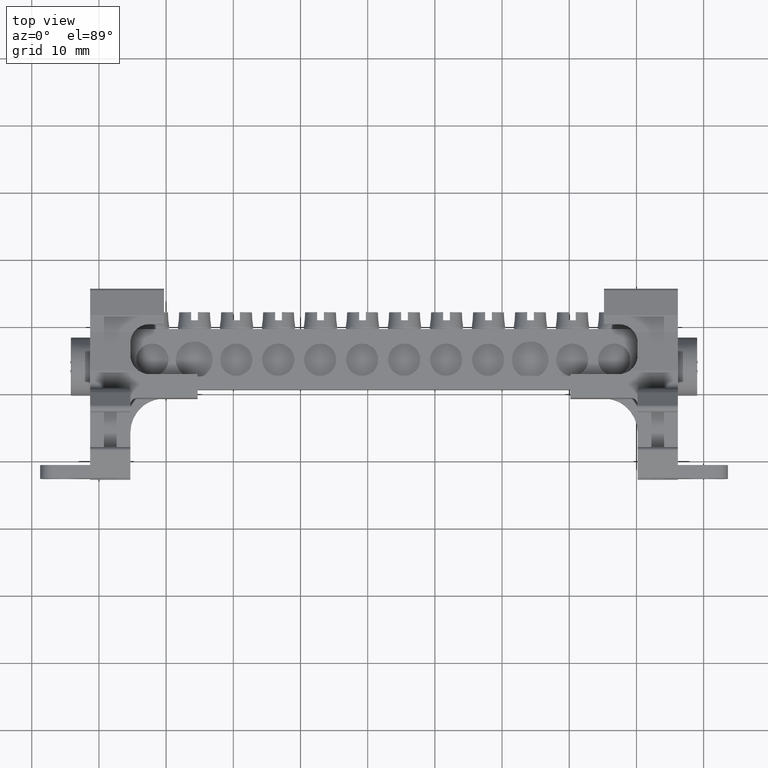
[diagram: clean part render]
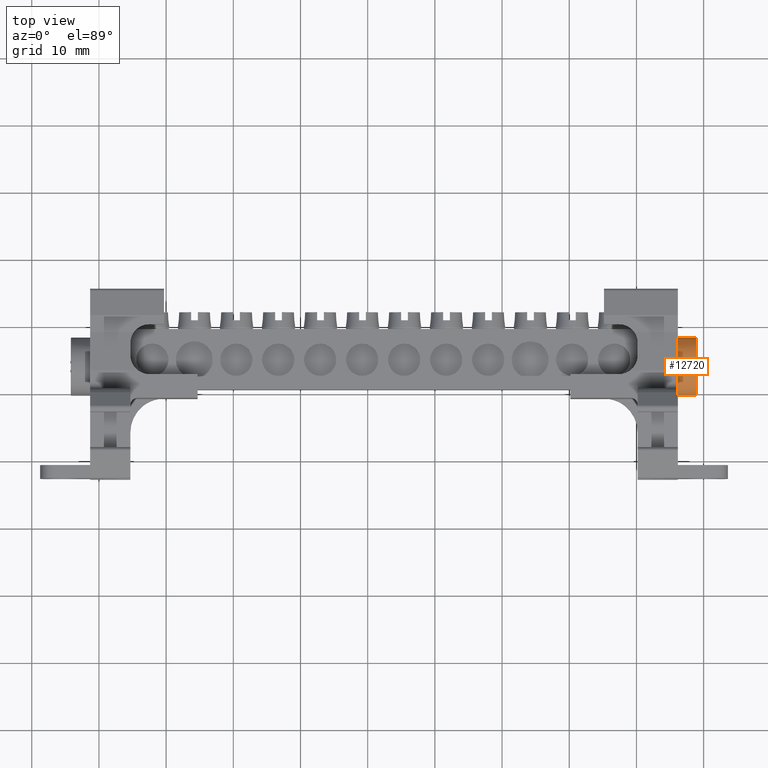
[diagram: same view with one face highlighted and labeled with its STEP entity id]
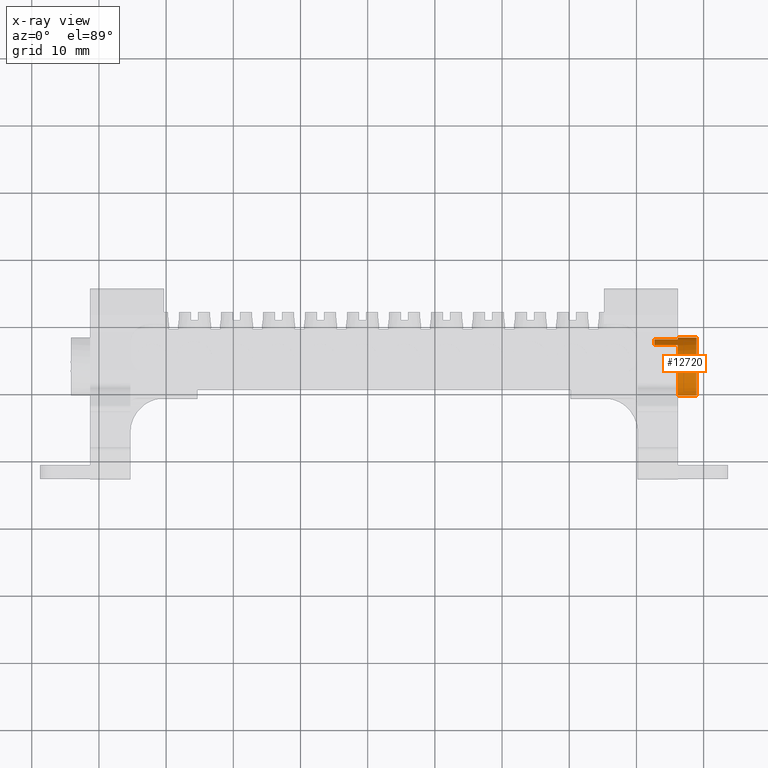
[diagram: x-ray of the same camera — body ghosted, the highlighted face saturated]
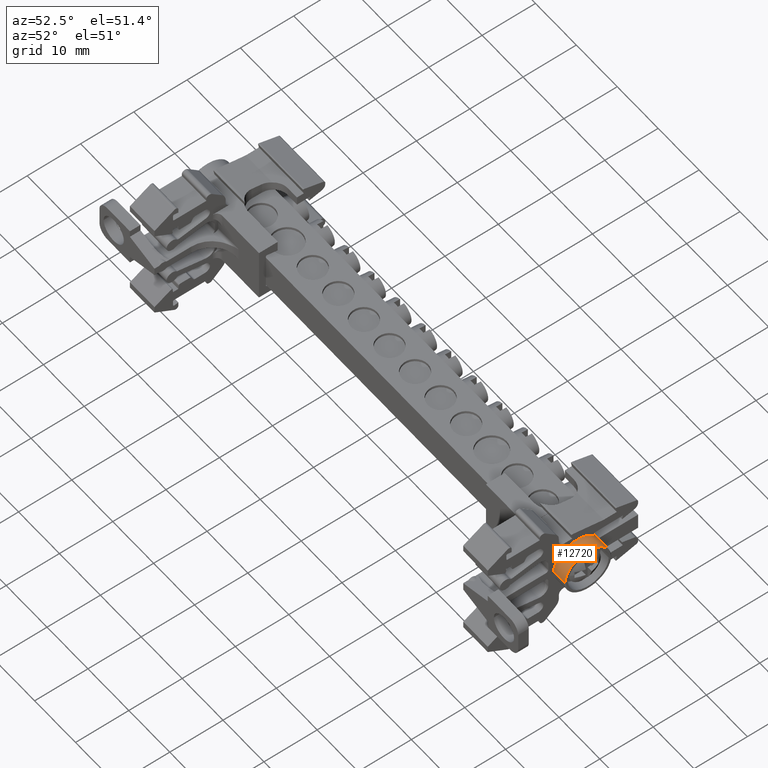
[diagram: same view with one face highlighted and labeled with its STEP entity id]
A machine part, top view. The second image highlights one B-rep face of the part: STEP entity #12720.
The next image is the same camera in x-ray: the body ghosted, the highlighted face saturated — about 0% of this face is hidden behind the body in this view.
A second angle (auxiliary view) of the same face is appended — the face is thin or edge-on in the first view.
In plain terms, the highlighted cylindrical surface (edge-blend (fillet) strip) has radius 4.325 mm, axis along (-1, -0, -0).
Its self-contained STEP definition (entity closure, byte-faithful):
#902 = CIRCLE ( 'NONE', #922, 4.325000000000079200 ) ;
#903 = CIRCLE ( 'NONE', #945, 4.325000000000079200 ) ;
#911 = VECTOR ( 'NONE', #15636, 1000.000000000000000 ) ;
#914 = CIRCLE ( 'NONE', #931, 4.325000000000079200 ) ;
#916 = VECTOR ( 'NONE', #22219, 1000.000000000000000 ) ;
#919 = CIRCLE ( 'NONE', #946, 4.325000000000079200 ) ;
#922 = AXIS2_PLACEMENT_3D ( 'NONE', #15578, #15605, #15618 ) ;
#931 = AXIS2_PLACEMENT_3D ( 'NONE', #15641, #15624, #15619 ) ;
#945 = AXIS2_PLACEMENT_3D ( 'NONE', #15627, #15620, #15622 ) ;
#946 = AXIS2_PLACEMENT_3D ( 'NONE', #15596, #15604, #15581 ) ;
#953 = VECTOR ( 'NONE', #15580, 1000.000000000000000 ) ;
#991 = VECTOR ( 'NONE', #8019, 1000.000000000000000 ) ;
#3151 = VERTEX_POINT ( 'NONE', #5616 ) ;
#3153 = VERTEX_POINT ( 'NONE', #5588 ) ;
#3208 = VERTEX_POINT ( 'NONE', #5575 ) ;
#3228 = VERTEX_POINT ( 'NONE', #5671 ) ;
#3238 = VERTEX_POINT ( 'NONE', #5649 ) ;
#3251 = VERTEX_POINT ( 'NONE', #5648 ) ;
#5575 = CARTESIAN_POINT ( 'NONE',  ( -57.35164581438646500, -92.03769363650801000, 217.5629665613013500 ) ) ;
#5588 = CARTESIAN_POINT ( 'NONE',  ( -53.82164581438659900, -92.94444791810197200, 218.9720208945539100 ) ) ;
#5616 = CARTESIAN_POINT ( 'NONE',  ( -57.35164581438646500, -92.94444792247883000, 218.9720208990971200 ) ) ;
#5648 = CARTESIAN_POINT ( 'NONE',  ( -53.82164581438651400, -100.3841813248499800, 215.9713441700650900 ) ) ;
#5649 = CARTESIAN_POINT ( 'NONE',  ( -53.82164581438652100, -91.73418132484982800, 215.9713441700650900 ) ) ;
#5671 = CARTESIAN_POINT ( 'NONE',  ( -53.82164581438652100, -92.03769363650799600, 217.5629665613013500 ) ) ;
#6936 = VERTEX_POINT ( 'NONE', #22594 ) ;
#6976 = VERTEX_POINT ( 'NONE', #22636 ) ;
#8006 = LINE ( 'NONE', #8054, #991 ) ;
#8019 = DIRECTION ( 'NONE',  ( -1.000000000000000000, -1.101172293446148100E-014, -2.403906012228000300E-015 ) ) ;
#8054 = CARTESIAN_POINT ( 'NONE',  ( -53.82164581438647100, -100.3841813248499800, 215.9713441700650900 ) ) ;
#9272 = EDGE_CURVE ( 'NONE', #3228, #3208, #15579, .T. ) ;
#9274 = EDGE_CURVE ( 'NONE', #6936, #6976, #919, .T. ) ;
#9287 = EDGE_CURVE ( 'NONE', #3208, #3151, #902, .T. ) ;
#9299 = EDGE_CURVE ( 'NONE', #3228, #3238, #914, .T. ) ;
#9304 = EDGE_CURVE ( 'NONE', #3251, #3153, #903, .T. ) ;
#9311 = EDGE_CURVE ( 'NONE', #3151, #3153, #15628, .T. ) ;
#9326 = EDGE_CURVE ( 'NONE', #6976, #3238, #15649, .T. ) ;
#9410 = EDGE_CURVE ( 'NONE', #6936, #3251, #8006, .T. ) ;
#11338 = ORIENTED_EDGE ( 'NONE', *, *, #9326, .T. ) ;
#11354 = ORIENTED_EDGE ( 'NONE', *, *, #9311, .T. ) ;
#11391 = ORIENTED_EDGE ( 'NONE', *, *, #9274, .T. ) ;
#11435 = ORIENTED_EDGE ( 'NONE', *, *, #9287, .T. ) ;
#11437 = ORIENTED_EDGE ( 'NONE', *, *, #9272, .T. ) ;
#11446 = ORIENTED_EDGE ( 'NONE', *, *, #9304, .F. ) ;
#11457 = ORIENTED_EDGE ( 'NONE', *, *, #9410, .F. ) ;
#11502 = ORIENTED_EDGE ( 'NONE', *, *, #9299, .F. ) ;
#12720 = ADVANCED_FACE ( 'NONE', ( #13621 ), #13625, .T. ) ;
#13594 = CARTESIAN_POINT ( 'NONE',  ( -53.82164581438652100, -96.05918132484990200, 215.9713441700650900 ) ) ;
#13595 = DIRECTION ( 'NONE',  ( 1.123057972886698400E-014, -1.000000000000000000, 0.0000000000000000000 ) ) ;
#13621 = FACE_OUTER_BOUND ( 'NONE', #16876, .T. ) ;
#13625 = CYLINDRICAL_SURFACE ( 'NONE', #25704, 4.325000000000079200 ) ;
#13628 = DIRECTION ( 'NONE',  ( -1.000000000000000000, -1.101172293446148100E-014, -2.403906012228000300E-015 ) ) ;
#15578 = CARTESIAN_POINT ( 'NONE',  ( -57.35164581438642300, -96.05918132484994500, 215.9713441700650900 ) ) ;
#15579 = LINE ( 'NONE', #15612, #953 ) ;
#15580 = DIRECTION ( 'NONE',  ( -1.000000000000000000, -1.100161628464490100E-014, -2.364590298907920300E-015 ) ) ;
#15581 = DIRECTION ( 'NONE',  ( 1.123057972886698400E-014, -1.000000000000000000, 0.0000000000000000000 ) ) ;
#15596 = CARTESIAN_POINT ( 'NONE',  ( -51.07164581438649300, -96.05918132484987400, 215.9713441700650900 ) ) ;
#15604 = DIRECTION ( 'NONE',  ( -1.000000000000000000, -1.101172293446148100E-014, -2.403906012228000300E-015 ) ) ;
#15605 = DIRECTION ( 'NONE',  ( 1.000000000000000000, 1.101172293446148100E-014, 2.403906012228000300E-015 ) ) ;
#15612 = CARTESIAN_POINT ( 'NONE',  ( -16.39264406477284900, -92.03769362803234300, 217.5629665599204000 ) ) ;
#15618 = DIRECTION ( 'NONE',  ( 1.123057972886698400E-014, -1.000000000000000000, -1.925242239234340400E-014 ) ) ;
#15619 = DIRECTION ( 'NONE',  ( 1.123057972886698400E-014, -1.000000000000000000, 0.0000000000000000000 ) ) ;
#15620 = DIRECTION ( 'NONE',  ( -1.000000000000000000, -1.101172293446148100E-014, -2.403906012228000300E-015 ) ) ;
#15622 = DIRECTION ( 'NONE',  ( 1.123057972886698400E-014, -1.000000000000000000, 0.0000000000000000000 ) ) ;
#15624 = DIRECTION ( 'NONE',  ( -1.000000000000000000, -1.101172293446148100E-014, -2.403906012228000300E-015 ) ) ;
#15626 = CARTESIAN_POINT ( 'NONE',  ( -53.82164581438655700, -92.94444792247877300, 218.9720208990970900 ) ) ;
#15627 = CARTESIAN_POINT ( 'NONE',  ( -53.82164581438655700, -96.05918132484990200, 215.9713441700650900 ) ) ;
#15628 = LINE ( 'NONE', #15626, #911 ) ;
#15636 = DIRECTION ( 'NONE',  ( 1.000000000000000000, 1.101172293446148100E-014, 2.403906012228000300E-015 ) ) ;
#15641 = CARTESIAN_POINT ( 'NONE',  ( -53.82164581438647100, -96.05918132484990200, 215.9713441700650900 ) ) ;
#15649 = LINE ( 'NONE', #15651, #916 ) ;
#15651 = CARTESIAN_POINT ( 'NONE',  ( -53.82164581438656400, -91.73418132484982800, 215.9713441700650900 ) ) ;
#16876 = EDGE_LOOP ( 'NONE', ( #11391, #11338, #11502, #11437, #11435, #11354, #11446, #11457 ) ) ;
#22219 = DIRECTION ( 'NONE',  ( -1.000000000000000000, -1.101172293446148100E-014, -2.403906012228000300E-015 ) ) ;
#22594 = CARTESIAN_POINT ( 'NONE',  ( -51.07164581438644300, -100.3841813248499600, 215.9713441700650900 ) ) ;
#22636 = CARTESIAN_POINT ( 'NONE',  ( -51.07164581438654200, -91.73418132484980000, 215.9713441700650900 ) ) ;
#25704 = AXIS2_PLACEMENT_3D ( 'NONE', #13594, #13628, #13595 ) ;